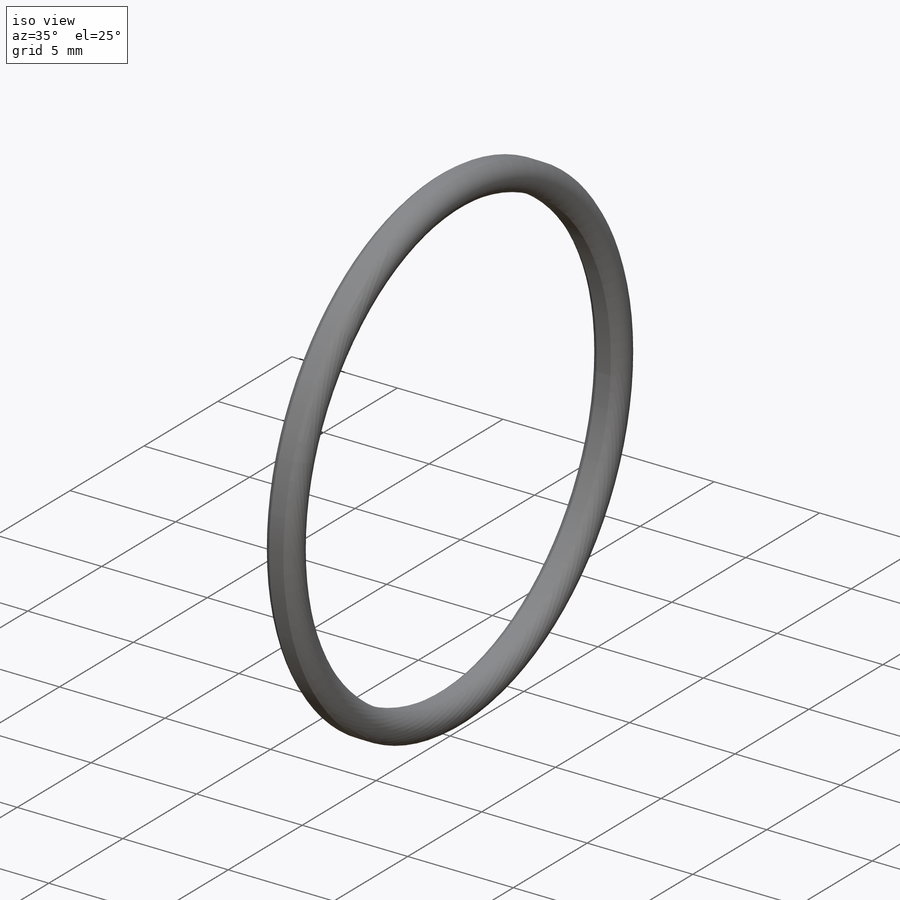
[diagram: iso view]
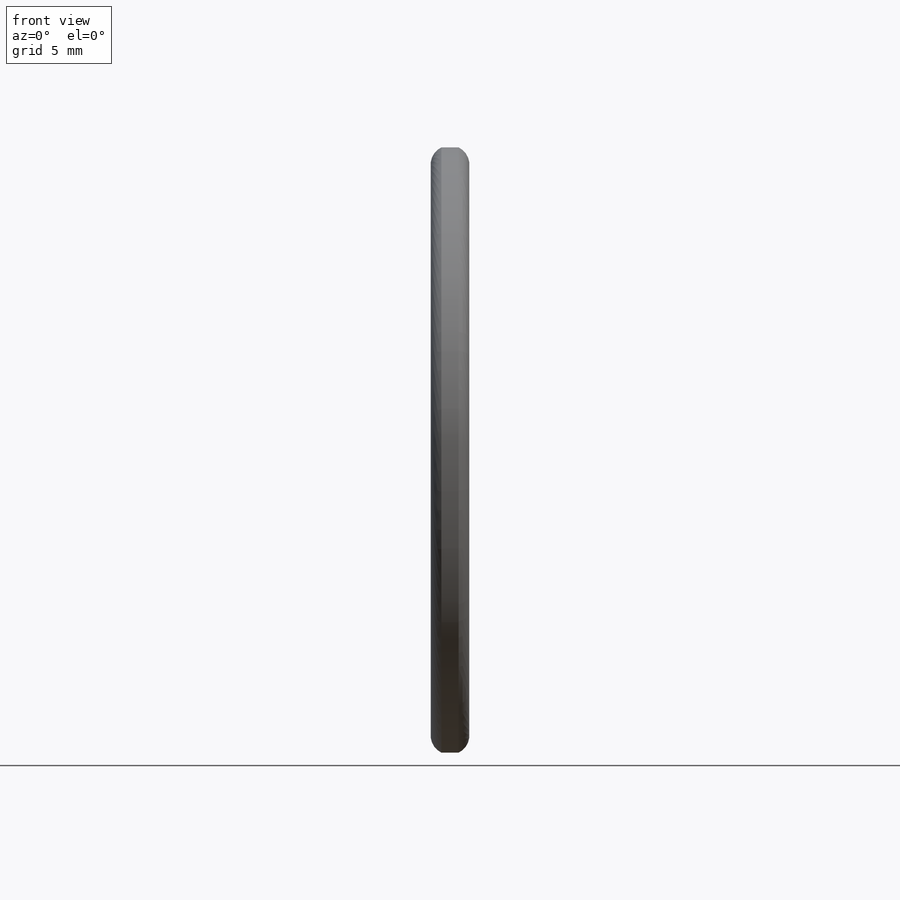
[diagram: front view]
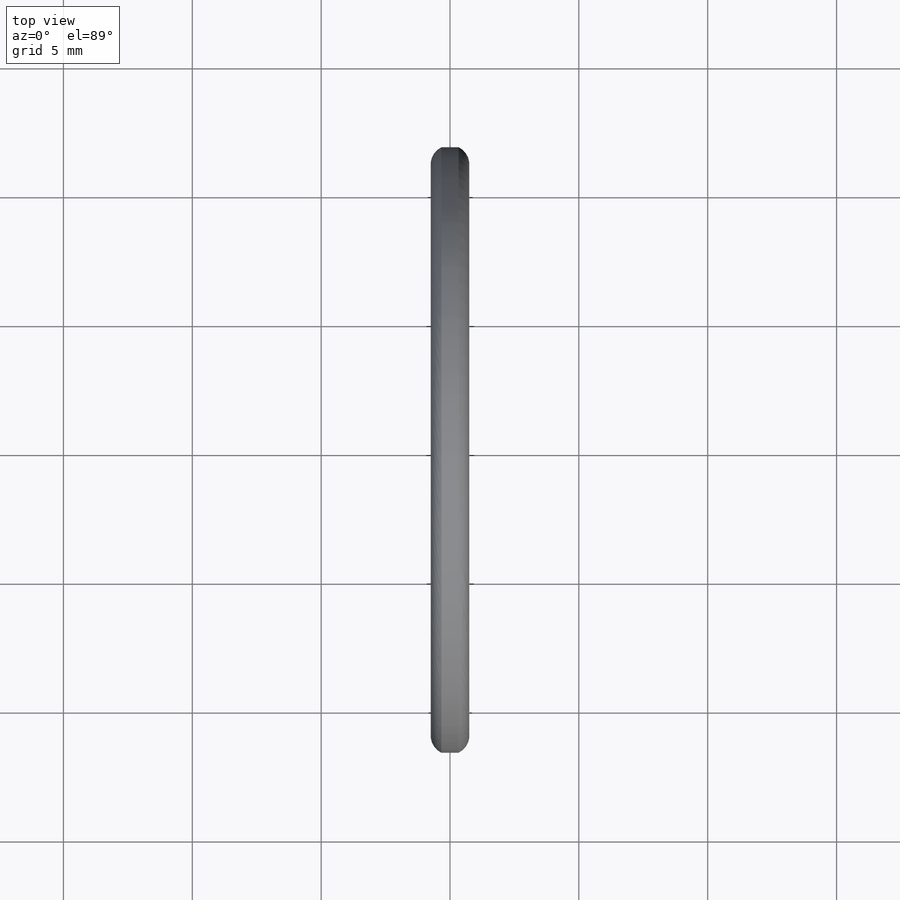
[diagram: top view]
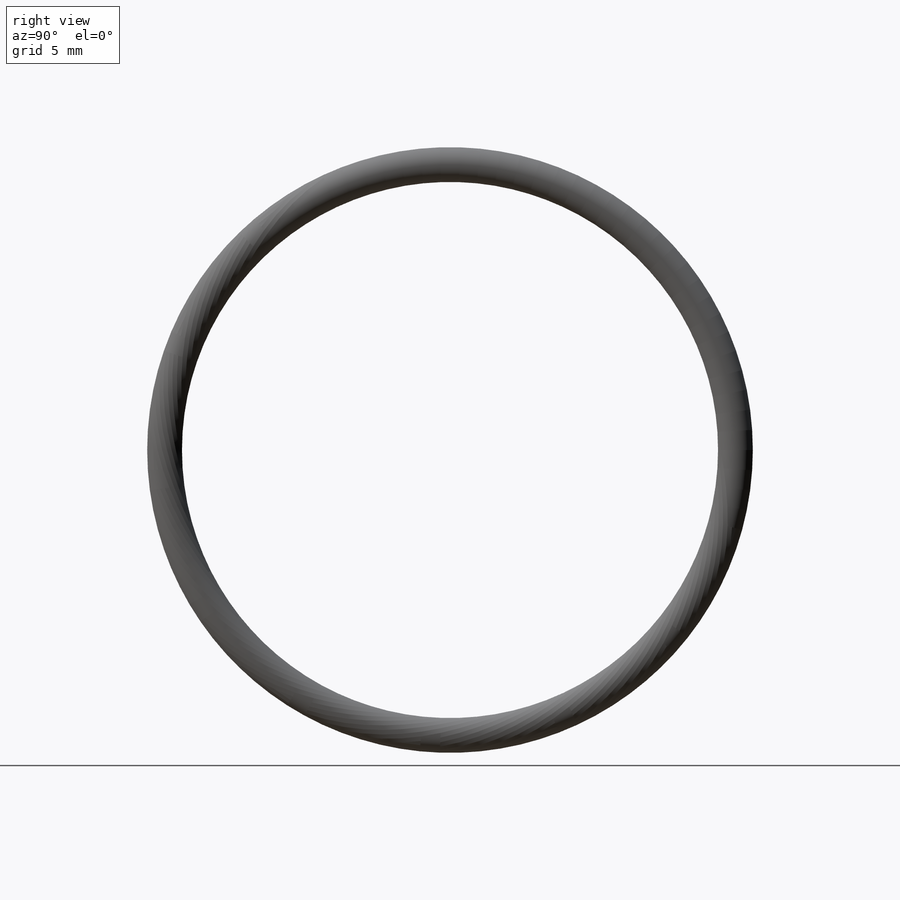
[diagram: right view]
SOLIDWORKS PART (.sldprt)
format: sldprt  version: not decoded by parser v0  size: 772,096 bytes
history: native  units: mm
features: sketch x6, revolve x5, material x1 (+13 scaffold rows collapsed)
feature tree (25):
  scaffold x13  (default folders/planes/origin — collapsed)
  material  "Material <not specified>"
  sketch  "Sketch1"  dims[c1.D1=15.5mm c1.D7=14.25mm c1.D9=15.75mm c1.D4=15.0mm c1.D6=14.0mm c2.D9=18.0mm c2.D1=1.5mm c2.D8=~16.560986mm c3.D9=10.0528mm c3.D10=~17.037016mm c3.D12=0.754mm c3.D15=0.739mm c3.D2=32.0mm c3.D3=62.0mm c3.D4=47.0mm c3.D5=33.0mm c3.D6=60.0mm c3.D8=48.0mm c4.D10=46.0mm c4.D11=~41.398485mm c4.D3=34.0mm c4.D4=16.0mm c4.D5=45.0mm c4.D7=51.0mm c4.D8=58.0mm c4.D9=5.0mm c5.D10=5.0mm c5.D11=12.0mm c5.D2=20.0mm c5.D3=17.5mm c6.D3=35.0deg c6.D4=17.5mm c7.D4=34.0deg c7.D5=10.0mm c8.D5=~99.485923deg c8.D6=~5.056526mm c9.D6=~61.927513deg c9.D7=~5.008541mm c10.D7=50.0deg c10.D8=~5.386038mm c11.D8=32.0deg c11.D9=~4.954908mm c11.D10=~5.189614mm c12.D9=~5.763341mm c13.D9=~26.462595deg c13.D10=~14.475406mm c13.D11=~6.116796mm c14.D10=~5.88633mm c15.D10=46.0deg c15.D11=~2.42507mm c16.D11=90.0deg c17.D11=23.5mm c17.D13=20.8mm c17.D14=1.35mm]
  sketch  "Sketch2"
  revolve  "Revolve1"  Angle=360deg
  sketch  "Sketch3"
  revolve  "Revolve2"  Angle=360deg
  sketch  "Sketch4"
  revolve  "Revolve3"  Angle=360deg
  sketch  "Sketch5"  dims[D1=10.4mm]
  revolve  "Revolve4"  Angle=360deg
  sketch  "Sketch6"  dims[D1=~4.922889mm]
  revolve  "Revolve5"  Angle=360deg
decode coverage: 8 of 11 modeling features carry decoded parameters
note: ~ marks probable driven/reference dimensions
note: suppression state not decoded; provenance and decode notes live in map.json
